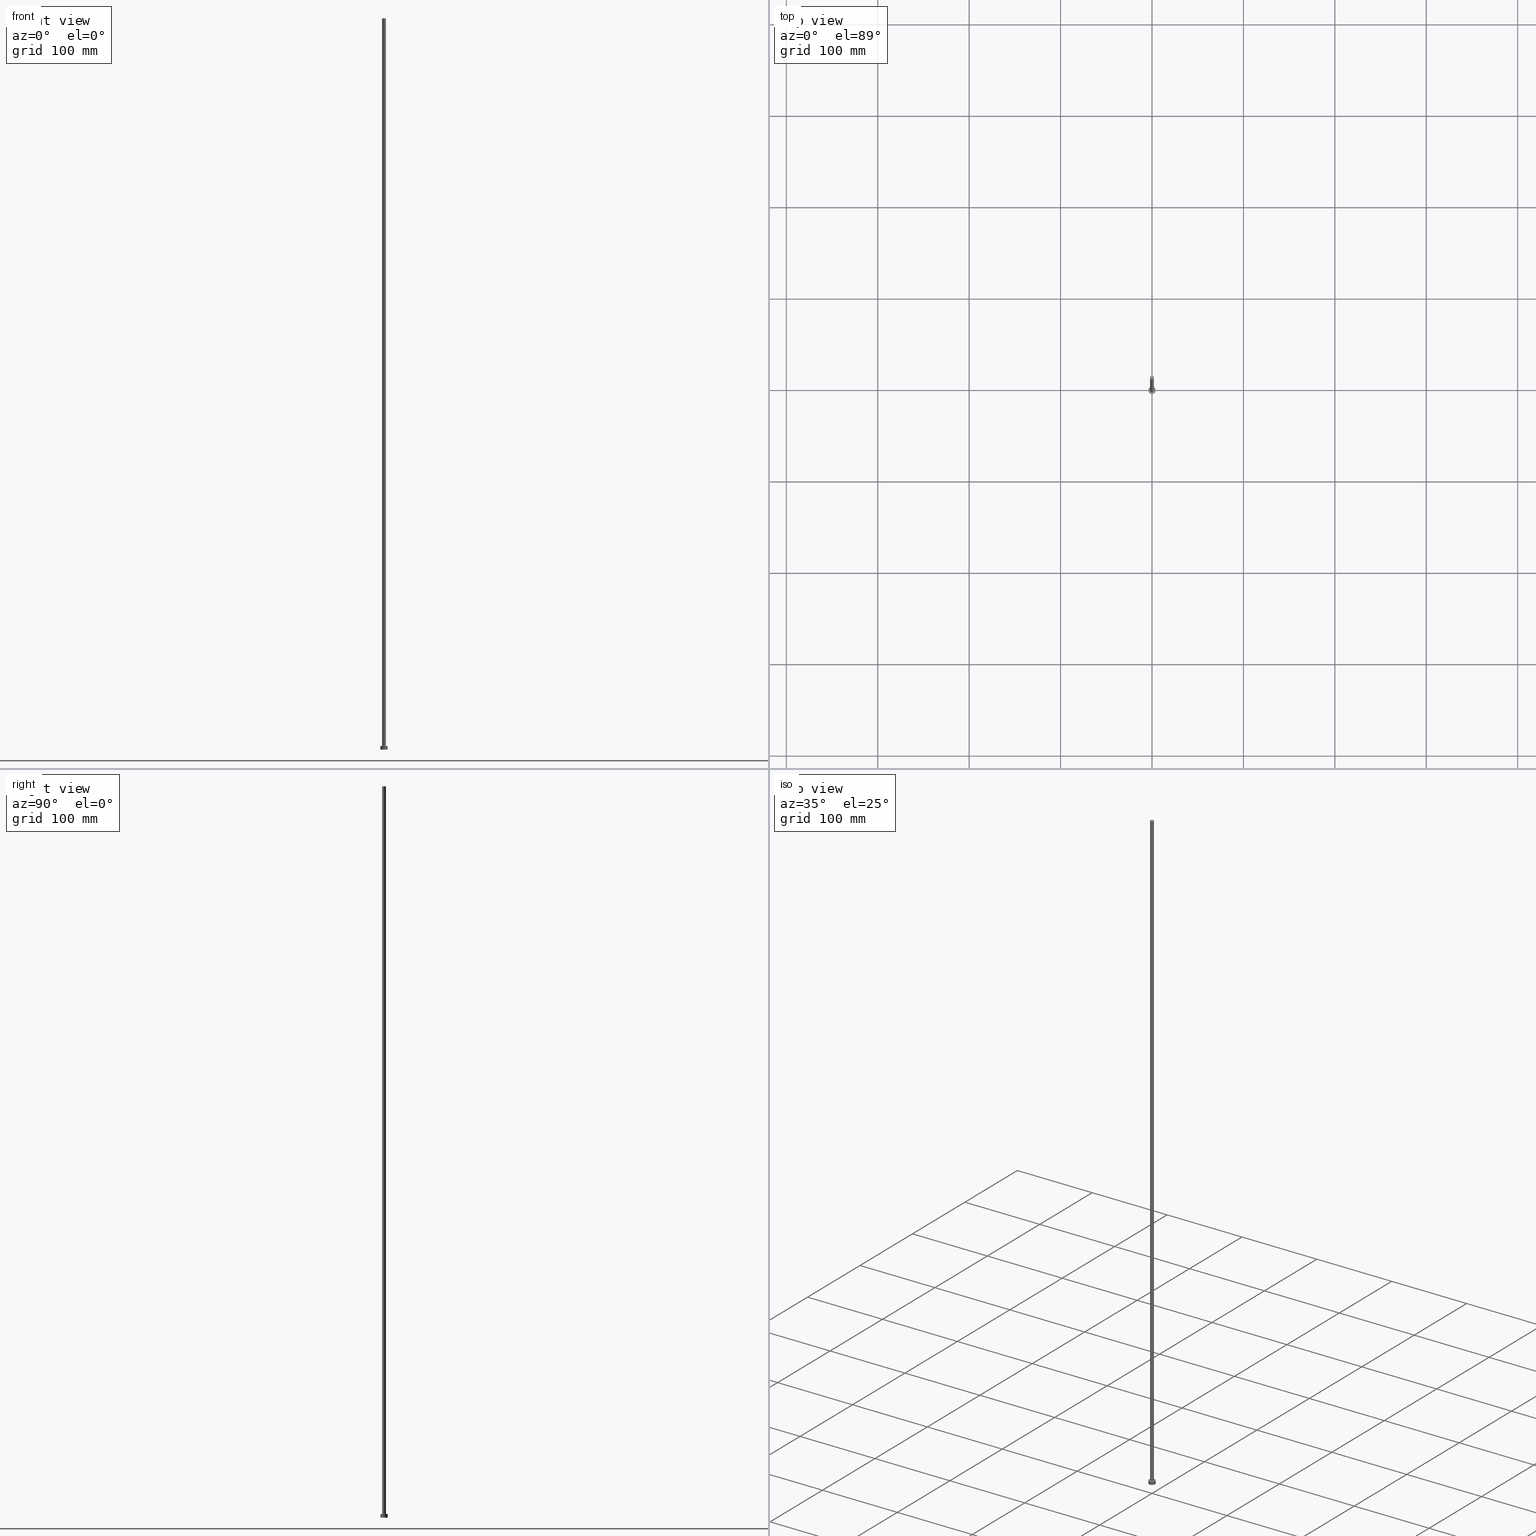
[diagram: canonical four-view strip — front | top / right | iso, engineering-drawing reading convention]
A machine part, canonical four-view strip (front | top / right | iso — engineering-drawing reading convention). The complete STEP part file that produces these views, byte-faithful:
ISO-10303-21;
HEADER;
FILE_DESCRIPTION (( 'STEP AP203' ),
    '1' );
FILE_NAME ('a6be.STEP',
    '2023-02-13T16:21:43',
    ( '' ),
    ( '' ),
    'SwSTEP 2.0',
    'SolidWorks 2019',
    '' );
FILE_SCHEMA (( 'CONFIG_CONTROL_DESIGN' ));
ENDSEC;

DATA;
#1 = ADVANCED_FACE ( 'NONE', ( #214 ), #160, .T. ) ;
#2 = CARTESIAN_POINT ( 'NONE',  ( 0.000000000000000000, 0.000000000000000000, 0.000000000000000000 ) ) ;
#3 = CC_DESIGN_PERSON_AND_ORGANIZATION_ASSIGNMENT ( #157, #243, ( #111 ) ) ;
#4 = LINE ( 'NONE', #5, #85 ) ;
#5 = CARTESIAN_POINT ( 'NONE',  ( 4.000000000000000000, 4.898587196589412829E-16, 4.000000000000000000 ) ) ;
#6 = AXIS2_PLACEMENT_3D ( 'NONE', #178, #136, #78 ) ;
#7 = DIRECTION ( 'NONE',  ( 0.000000000000000000, 0.000000000000000000, 1.000000000000000000 ) ) ;
#8 = CARTESIAN_POINT ( 'NONE',  ( 2.100000000000000089, 2.571758278209441957E-16, 800.0000000000000000 ) ) ;
#9 = CIRCLE ( 'NONE', #225, 4.000000000000000000 ) ;
#10 = APPROVAL_STATUS ( 'not_yet_approved' ) ;
#11 = AXIS2_PLACEMENT_3D ( 'NONE', #87, #184, #167 ) ;
#12 = COORDINATED_UNIVERSAL_TIME_OFFSET ( 1, 0, .AHEAD. ) ;
#13 = VERTEX_POINT ( 'NONE', #103 ) ;
#14 = FACE_BOUND ( 'NONE', #168, .T. ) ;
#15 = EDGE_LOOP ( 'NONE', ( #190, #131, #228, #195 ) ) ;
#16 = CALENDAR_DATE ( 2023, 13, 2 ) ;
#17 = APPROVAL_DATE_TIME ( #151, #240 ) ;
#18 = CARTESIAN_POINT ( 'NONE',  ( 0.000000000000000000, 0.000000000000000000, 800.0000000000000000 ) ) ;
#19 = CIRCLE ( 'NONE', #11, 2.100000000000000089 ) ;
#20 = PRODUCT_DEFINITION_SHAPE ( 'NONE', 'NONE',  #61 ) ;
#21 = EDGE_CURVE ( 'NONE', #171, #135, #235, .T. ) ;
#22 = CC_DESIGN_APPROVAL ( #66, ( #61 ) ) ;
#23 = EDGE_CURVE ( 'NONE', #138, #255, #112, .T. ) ;
#24 = CARTESIAN_POINT ( 'NONE',  ( 4.000000000000000000, 4.898587196589412829E-16, 0.000000000000000000 ) ) ;
#25 = CIRCLE ( 'NONE', #117, 2.100000000000000089 ) ;
#26 = PERSON_AND_ORGANIZATION ( #127, #200 ) ;
#27 = CC_DESIGN_DATE_AND_TIME_ASSIGNMENT ( #252, #213, ( #111 ) ) ;
#28 = VECTOR ( 'NONE', #251, 1000.000000000000000 ) ;
#29 = FACE_OUTER_BOUND ( 'NONE', #187, .T. ) ;
#30 = ORIENTED_EDGE ( 'NONE', *, *, #211, .T. ) ;
#31 = APPROVAL_PERSON_ORGANIZATION ( #145, #188, #58 ) ;
#32 = APPLICATION_PROTOCOL_DEFINITION ( 'international standard', 'config_control_design', 1994, #118 ) ;
#33 = ORIENTED_EDGE ( 'NONE', *, *, #144, .F. ) ;
#34 = AXIS2_PLACEMENT_3D ( 'NONE', #238, #182, #218 ) ;
#35 = APPROVAL_ROLE ( '' ) ;
#36 = DIRECTION ( 'NONE',  ( 0.000000000000000000, 0.000000000000000000, 1.000000000000000000 ) ) ;
#37 = CC_DESIGN_APPROVAL ( #188, ( #91 ) ) ;
#38 = CALENDAR_DATE ( 2023, 13, 2 ) ;
#39 = CARTESIAN_POINT ( 'NONE',  ( 2.100000000000000089, 2.571758278209441957E-16, 800.0000000000000000 ) ) ;
#40 = AXIS2_PLACEMENT_3D ( 'NONE', #229, #250, #233 ) ;
#41 = DIRECTION ( 'NONE',  ( 1.000000000000000000, 0.000000000000000000, 0.000000000000000000 ) ) ;
#42 = FACE_OUTER_BOUND ( 'NONE', #99, .T. ) ;
#43 = DIRECTION ( 'NONE',  ( -0.000000000000000000, -0.000000000000000000, -1.000000000000000000 ) ) ;
#44 = DIRECTION ( 'NONE',  ( 1.000000000000000000, 0.000000000000000000, 0.000000000000000000 ) ) ;
#45 = AXIS2_PLACEMENT_3D ( 'NONE', #76, #154, #139 ) ;
#46 = CARTESIAN_POINT ( 'NONE',  ( -2.100000000000000089, 0.000000000000000000, 800.0000000000000000 ) ) ;
#47 = EDGE_CURVE ( 'NONE', #13, #171, #4, .T. ) ;
#48 = VERTEX_POINT ( 'NONE', #124 ) ;
#49 = CALENDAR_DATE ( 2023, 13, 2 ) ;
#50 = CC_DESIGN_SECURITY_CLASSIFICATION ( #111, ( #91 ) ) ;
#51 = COORDINATED_UNIVERSAL_TIME_OFFSET ( 1, 0, .AHEAD. ) ;
#52 =( LENGTH_UNIT ( ) NAMED_UNIT ( * ) SI_UNIT ( .MILLI., .METRE. ) );
#53 = ORIENTED_EDGE ( 'NONE', *, *, #140, .T. ) ;
#54 =( NAMED_UNIT ( * ) PLANE_ANGLE_UNIT ( ) SI_UNIT ( $, .RADIAN. ) );
#55 = EDGE_LOOP ( 'NONE', ( #88, #53 ) ) ;
#56 = AXIS2_PLACEMENT_3D ( 'NONE', #83, #7, #44 ) ;
#57 = EDGE_CURVE ( 'NONE', #177, #48, #150, .T. ) ;
#58 = APPROVAL_ROLE ( '' ) ;
#59 = AXIS2_PLACEMENT_3D ( 'NONE', #205, #110, #65 ) ;
#60 = APPROVAL_STATUS ( 'not_yet_approved' ) ;
#61 = PRODUCT_DEFINITION ( 'NEZN�M�', '', #91, #115 ) ;
#62 = COORDINATED_UNIVERSAL_TIME_OFFSET ( 1, 0, .AHEAD. ) ;
#63 = CARTESIAN_POINT ( 'NONE',  ( 0.000000000000000000, 0.000000000000000000, 0.000000000000000000 ) ) ;
#64 = DIRECTION ( 'NONE',  ( 0.000000000000000000, 0.000000000000000000, 1.000000000000000000 ) ) ;
#65 = DIRECTION ( 'NONE',  ( -1.000000000000000000, 0.000000000000000000, 0.000000000000000000 ) ) ;
#66 = APPROVAL ( #60, 'NEUR�EN�' ) ;
#67 = DIRECTION ( 'NONE',  ( -0.000000000000000000, -0.000000000000000000, -1.000000000000000000 ) ) ;
#68 = EDGE_CURVE ( 'NONE', #255, #48, #19, .T. ) ;
#69 = CC_DESIGN_APPROVAL ( #240, ( #111 ) ) ;
#70 = ORIENTED_EDGE ( 'NONE', *, *, #47, .F. ) ;
#71 = CARTESIAN_POINT ( 'NONE',  ( 0.000000000000000000, 0.000000000000000000, 4.000000000000000000 ) ) ;
#72 = PERSON_AND_ORGANIZATION ( #127, #200 ) ;
#73 = CARTESIAN_POINT ( 'NONE',  ( 2.100000000000000089, 2.571758278209441957E-16, 4.000000000000000000 ) ) ;
#74 = ORIENTED_EDGE ( 'NONE', *, *, #253, .F. ) ;
#75 = CC_DESIGN_PERSON_AND_ORGANIZATION_ASSIGNMENT ( #254, #231, ( #61 ) ) ;
#76 = CARTESIAN_POINT ( 'NONE',  ( 0.000000000000000000, 0.000000000000000000, 800.0000000000000000 ) ) ;
#77 = ORIENTED_EDGE ( 'NONE', *, *, #144, .T. ) ;
#78 = DIRECTION ( 'NONE',  ( 1.000000000000000000, 0.000000000000000000, -0.000000000000000000 ) ) ;
#79 = ORIENTED_EDGE ( 'NONE', *, *, #21, .F. ) ;
#80 = DIRECTION ( 'NONE',  ( 1.000000000000000000, 0.000000000000000000, 0.000000000000000000 ) ) ;
#81 = APPROVAL_DATE_TIME ( #241, #66 ) ;
#82 = DIRECTION ( 'NONE',  ( 0.000000000000000000, 0.000000000000000000, 1.000000000000000000 ) ) ;
#83 = CARTESIAN_POINT ( 'NONE',  ( 0.000000000000000000, 0.000000000000000000, 4.000000000000000000 ) ) ;
#84 = COORDINATED_UNIVERSAL_TIME_OFFSET ( 1, 0, .AHEAD. ) ;
#85 = VECTOR ( 'NONE', #67, 1000.000000000000000 ) ;
#86 = LOCAL_TIME ( 17, 21, 43.00000000000000000, #133 ) ;
#87 = CARTESIAN_POINT ( 'NONE',  ( 0.000000000000000000, 0.000000000000000000, 4.000000000000000000 ) ) ;
#88 = ORIENTED_EDGE ( 'NONE', *, *, #227, .T. ) ;
#89 = CIRCLE ( 'NONE', #226, 4.000000000000000000 ) ;
#90 = CARTESIAN_POINT ( 'NONE',  ( 0.000000000000000000, 0.000000000000000000, 0.000000000000000000 ) ) ;
#91 = PRODUCT_DEFINITION_FORMATION_WITH_SPECIFIED_SOURCE ( 'LIBOVOLN�', '', #246, .NOT_KNOWN. ) ;
#92 = CYLINDRICAL_SURFACE ( 'NONE', #128, 2.100000000000000089 ) ;
#93 = DIRECTION ( 'NONE',  ( 0.000000000000000000, 0.000000000000000000, 1.000000000000000000 ) ) ;
#94 = DATE_AND_TIME ( #16, #180 ) ;
#95 = CARTESIAN_POINT ( 'NONE',  ( 0.000000000000000000, 0.000000000000000000, 800.0000000000000000 ) ) ;
#96 = ORIENTED_EDGE ( 'NONE', *, *, #211, .F. ) ;
#97 = DIRECTION ( 'NONE',  ( -1.000000000000000000, 0.000000000000000000, 0.000000000000000000 ) ) ;
#98 = ADVANCED_FACE ( 'NONE', ( #242 ), #164, .T. ) ;
#99 = EDGE_LOOP ( 'NONE', ( #244, #79 ) ) ;
#100 = PLANE ( 'NONE',  #45 ) ;
#101 = PERSON_AND_ORGANIZATION_ROLE ( 'design_supplier' ) ;
#102 = DATE_TIME_ROLE ( 'creation_date' ) ;
#103 = CARTESIAN_POINT ( 'NONE',  ( 4.000000000000000000, 4.898587196589412829E-16, 4.000000000000000000 ) ) ;
#104 = CC_DESIGN_PERSON_AND_ORGANIZATION_ASSIGNMENT ( #216, #120, ( #91 ) ) ;
#105 = CARTESIAN_POINT ( 'NONE',  ( 0.000000000000000000, 0.000000000000000000, 0.000000000000000000 ) ) ;
#106 = PERSON_AND_ORGANIZATION ( #127, #200 ) ;
#107 = ADVANCED_FACE ( 'NONE', ( #42 ), #203, .F. ) ;
#108 = MANIFOLD_SOLID_BREP ( 'P�idat vysunut�m3', #137 ) ;
#109 = CARTESIAN_POINT ( 'NONE',  ( -4.000000000000000000, 0.000000000000000000, 4.000000000000000000 ) ) ;
#110 = DIRECTION ( 'NONE',  ( -0.000000000000000000, -0.000000000000000000, -1.000000000000000000 ) ) ;
#111 = SECURITY_CLASSIFICATION ( '', '', #134 ) ;
#112 = LINE ( 'NONE', #8, #132 ) ;
#113 = APPROVAL_STATUS ( 'not_yet_approved' ) ;
#114 = CARTESIAN_POINT ( 'NONE',  ( -4.000000000000000000, 0.000000000000000000, 4.000000000000000000 ) ) ;
#115 = DESIGN_CONTEXT ( 'detailed design', #197, 'design' ) ;
#116 = CIRCLE ( 'NONE', #208, 2.100000000000000089 ) ;
#117 = AXIS2_PLACEMENT_3D ( 'NONE', #212, #93, #172 ) ;
#118 = APPLICATION_CONTEXT ( 'configuration controlled 3d designs of mechanical parts and assemblies' ) ;
#119 = ORIENTED_EDGE ( 'NONE', *, *, #227, .F. ) ;
#120 = PERSON_AND_ORGANIZATION_ROLE ( 'creator' ) ;
#121 = AXIS2_PLACEMENT_3D ( 'NONE', #71, #43, #223 ) ;
#122 = DIRECTION ( 'NONE',  ( 1.000000000000000000, 0.000000000000000000, 0.000000000000000000 ) ) ;
#123 = LOCAL_TIME ( 17, 21, 43.00000000000000000, #62 ) ;
#124 = CARTESIAN_POINT ( 'NONE',  ( -2.100000000000000089, 0.000000000000000000, 4.000000000000000000 ) ) ;
#125 = AXIS2_PLACEMENT_3D ( 'NONE', #63, #36, #122 ) ;
#126 = DIRECTION ( 'NONE',  ( -0.000000000000000000, -0.000000000000000000, -1.000000000000000000 ) ) ;
#127 = PERSON ( 'NEUR�EN�', 'NEUR�EN�', 'NEUR�EN�', ('NEUR�EN�'), ('NEUR�EN�'), ('NEUR�EN�') ) ;
#128 = AXIS2_PLACEMENT_3D ( 'NONE', #95, #174, #97 ) ;
#129 = CC_DESIGN_PERSON_AND_ORGANIZATION_ASSIGNMENT ( #26, #101, ( #91 ) ) ;
#130 = FACE_OUTER_BOUND ( 'NONE', #15, .T. ) ;
#131 = ORIENTED_EDGE ( 'NONE', *, *, #23, .T. ) ;
#132 = VECTOR ( 'NONE', #126, 1000.000000000000000 ) ;
#133 = COORDINATED_UNIVERSAL_TIME_OFFSET ( 1, 0, .AHEAD. ) ;
#134 = SECURITY_CLASSIFICATION_LEVEL ( 'unclassified' ) ;
#135 = VERTEX_POINT ( 'NONE', #162 ) ;
#136 = DIRECTION ( 'NONE',  ( 0.000000000000000000, 0.000000000000000000, 1.000000000000000000 ) ) ;
#137 = CLOSED_SHELL ( 'NONE', ( #185, #1, #181, #202, #107, #98, #217 ) ) ;
#138 = VERTEX_POINT ( 'NONE', #39 ) ;
#139 = DIRECTION ( 'NONE',  ( 1.000000000000000000, 0.000000000000000000, -0.000000000000000000 ) ) ;
#140 = EDGE_CURVE ( 'NONE', #138, #177, #116, .T. ) ;
#141 = ORIENTED_EDGE ( 'NONE', *, *, #23, .F. ) ;
#142 = CALENDAR_DATE ( 2023, 13, 2 ) ;
#143 = VECTOR ( 'NONE', #204, 1000.000000000000000 ) ;
#144 = EDGE_CURVE ( 'NONE', #192, #135, #201, .T. ) ;
#145 = PERSON_AND_ORGANIZATION ( #127, #200 ) ;
#146 = MECHANICAL_CONTEXT ( 'NONE', #118, 'mechanical' ) ;
#147 = EDGE_CURVE ( 'NONE', #48, #255, #169, .T. ) ;
#148 = FACE_OUTER_BOUND ( 'NONE', #249, .T. ) ;
#149 = CARTESIAN_POINT ( 'NONE',  ( -2.100000000000000089, 0.000000000000000000, 800.0000000000000000 ) ) ;
#150 = LINE ( 'NONE', #149, #143 ) ;
#151 = DATE_AND_TIME ( #38, #175 ) ;
#152 = APPROVAL_PERSON_ORGANIZATION ( #72, #240, #35 ) ;
#153 =( GEOMETRIC_REPRESENTATION_CONTEXT ( 3 ) GLOBAL_UNCERTAINTY_ASSIGNED_CONTEXT ( ( #186 ) ) GLOBAL_UNIT_ASSIGNED_CONTEXT ( ( #52, #54, #189 ) ) REPRESENTATION_CONTEXT ( 'NONE', 'WORKASPACE' ) );
#154 = DIRECTION ( 'NONE',  ( 0.000000000000000000, 0.000000000000000000, 1.000000000000000000 ) ) ;
#155 = DIRECTION ( 'NONE',  ( 0.000000000000000000, 0.000000000000000000, 1.000000000000000000 ) ) ;
#156 = ORIENTED_EDGE ( 'NONE', *, *, #68, .F. ) ;
#157 = PERSON_AND_ORGANIZATION ( #127, #200 ) ;
#158 = ORIENTED_EDGE ( 'NONE', *, *, #57, .T. ) ;
#159 = CC_DESIGN_PERSON_AND_ORGANIZATION_ASSIGNMENT ( #106, #237, ( #246 ) ) ;
#160 = CYLINDRICAL_SURFACE ( 'NONE', #34, 4.000000000000000000 ) ;
#161 = DIRECTION ( 'NONE',  ( 1.000000000000000000, 0.000000000000000000, -0.000000000000000000 ) ) ;
#162 = CARTESIAN_POINT ( 'NONE',  ( -4.000000000000000000, 0.000000000000000000, 0.000000000000000000 ) ) ;
#163 = APPLICATION_PROTOCOL_DEFINITION ( 'international standard', 'config_control_design', 1994, #197 ) ;
#164 = CYLINDRICAL_SURFACE ( 'NONE', #59, 2.100000000000000089 ) ;
#165 = EDGE_CURVE ( 'NONE', #135, #171, #89, .T. ) ;
#166 = CALENDAR_DATE ( 2023, 13, 2 ) ;
#167 = DIRECTION ( 'NONE',  ( 1.000000000000000000, 0.000000000000000000, 0.000000000000000000 ) ) ;
#168 = EDGE_LOOP ( 'NONE', ( #210, #156 ) ) ;
#169 = CIRCLE ( 'NONE', #56, 2.100000000000000089 ) ;
#170 = CYLINDRICAL_SURFACE ( 'NONE', #121, 4.000000000000000000 ) ;
#171 = VERTEX_POINT ( 'NONE', #24 ) ;
#172 = DIRECTION ( 'NONE',  ( 1.000000000000000000, 0.000000000000000000, 0.000000000000000000 ) ) ;
#173 = AXIS2_PLACEMENT_3D ( 'NONE', #2, #221, #161 ) ;
#174 = DIRECTION ( 'NONE',  ( -0.000000000000000000, -0.000000000000000000, -1.000000000000000000 ) ) ;
#175 = LOCAL_TIME ( 17, 21, 43.00000000000000000, #84 ) ;
#176 = ORIENTED_EDGE ( 'NONE', *, *, #165, .T. ) ;
#177 = VERTEX_POINT ( 'NONE', #46 ) ;
#178 = CARTESIAN_POINT ( 'NONE',  ( 0.000000000000000000, 0.000000000000000000, 4.000000000000000000 ) ) ;
#179 = SHAPE_DEFINITION_REPRESENTATION ( #20, #230 ) ;
#180 = LOCAL_TIME ( 17, 21, 43.00000000000000000, #12 ) ;
#181 = ADVANCED_FACE ( 'NONE', ( #148 ), #170, .T. ) ;
#182 = DIRECTION ( 'NONE',  ( -0.000000000000000000, -0.000000000000000000, -1.000000000000000000 ) ) ;
#183 = AXIS2_PLACEMENT_3D ( 'NONE', #105, #82, #198 ) ;
#184 = DIRECTION ( 'NONE',  ( 0.000000000000000000, 0.000000000000000000, 1.000000000000000000 ) ) ;
#185 = ADVANCED_FACE ( 'NONE', ( #130 ), #92, .T. ) ;
#186 = UNCERTAINTY_MEASURE_WITH_UNIT (LENGTH_MEASURE( 1.000000000000000082E-05 ), #52, 'distance_accuracy_value', 'NONE');
#187 = EDGE_LOOP ( 'NONE', ( #207, #30 ) ) ;
#188 = APPROVAL ( #10, 'NEUR�EN�' ) ;
#189 =( NAMED_UNIT ( * ) SI_UNIT ( $, .STERADIAN. ) SOLID_ANGLE_UNIT ( ) );
#190 = ORIENTED_EDGE ( 'NONE', *, *, #140, .F. ) ;
#191 = PLANE ( 'NONE',  #6 ) ;
#192 = VERTEX_POINT ( 'NONE', #114 ) ;
#193 = PRODUCT_RELATED_PRODUCT_CATEGORY ( 'detail', '', ( #246 ) ) ;
#194 = DATE_AND_TIME ( #49, #220 ) ;
#195 = ORIENTED_EDGE ( 'NONE', *, *, #57, .F. ) ;
#196 = CIRCLE ( 'NONE', #40, 4.000000000000000000 ) ;
#197 = APPLICATION_CONTEXT ( 'configuration controlled 3d designs of mechanical parts and assemblies' ) ;
#198 = DIRECTION ( 'NONE',  ( 1.000000000000000000, 0.000000000000000000, 0.000000000000000000 ) ) ;
#199 = APPROVAL_ROLE ( '' ) ;
#200 = ORGANIZATION ( 'NEUR�EN�', 'NEUR�EN�', '' ) ;
#201 = LINE ( 'NONE', #109, #28 ) ;
#202 = ADVANCED_FACE ( 'NONE', ( #14, #29 ), #191, .T. ) ;
#203 = PLANE ( 'NONE',  #173 ) ;
#204 = DIRECTION ( 'NONE',  ( -0.000000000000000000, -0.000000000000000000, -1.000000000000000000 ) ) ;
#205 = CARTESIAN_POINT ( 'NONE',  ( 0.000000000000000000, 0.000000000000000000, 800.0000000000000000 ) ) ;
#206 = ORIENTED_EDGE ( 'NONE', *, *, #21, .T. ) ;
#207 = ORIENTED_EDGE ( 'NONE', *, *, #253, .T. ) ;
#208 = AXIS2_PLACEMENT_3D ( 'NONE', #18, #64, #41 ) ;
#209 = EDGE_LOOP ( 'NONE', ( #141, #119, #158, #219 ) ) ;
#210 = ORIENTED_EDGE ( 'NONE', *, *, #147, .F. ) ;
#211 = EDGE_CURVE ( 'NONE', #13, #192, #9, .T. ) ;
#212 = CARTESIAN_POINT ( 'NONE',  ( 0.000000000000000000, 0.000000000000000000, 800.0000000000000000 ) ) ;
#213 = DATE_TIME_ROLE ( 'classification_date' ) ;
#214 = FACE_OUTER_BOUND ( 'NONE', #247, .T. ) ;
#215 = APPROVAL_PERSON_ORGANIZATION ( #239, #66, #199 ) ;
#216 = PERSON_AND_ORGANIZATION ( #127, #200 ) ;
#217 = ADVANCED_FACE ( 'NONE', ( #245 ), #100, .T. ) ;
#218 = DIRECTION ( 'NONE',  ( -1.000000000000000000, 0.000000000000000000, 0.000000000000000000 ) ) ;
#219 = ORIENTED_EDGE ( 'NONE', *, *, #147, .T. ) ;
#220 = LOCAL_TIME ( 17, 21, 43.00000000000000000, #51 ) ;
#221 = DIRECTION ( 'NONE',  ( 0.000000000000000000, 0.000000000000000000, 1.000000000000000000 ) ) ;
#222 = DIRECTION ( 'NONE',  ( 1.000000000000000000, 0.000000000000000000, 0.000000000000000000 ) ) ;
#223 = DIRECTION ( 'NONE',  ( -1.000000000000000000, 0.000000000000000000, 0.000000000000000000 ) ) ;
#224 = DIRECTION ( 'NONE',  ( 0.000000000000000000, 0.000000000000000000, 1.000000000000000000 ) ) ;
#225 = AXIS2_PLACEMENT_3D ( 'NONE', #248, #155, #80 ) ;
#226 = AXIS2_PLACEMENT_3D ( 'NONE', #90, #224, #222 ) ;
#227 = EDGE_CURVE ( 'NONE', #177, #138, #25, .T. ) ;
#228 = ORIENTED_EDGE ( 'NONE', *, *, #68, .T. ) ;
#229 = CARTESIAN_POINT ( 'NONE',  ( 0.000000000000000000, 0.000000000000000000, 4.000000000000000000 ) ) ;
#230 = ADVANCED_BREP_SHAPE_REPRESENTATION ( 'a6be', ( #108, #183 ), #153 ) ;
#231 = PERSON_AND_ORGANIZATION_ROLE ( 'creator' ) ;
#232 = ORIENTED_EDGE ( 'NONE', *, *, #47, .T. ) ;
#233 = DIRECTION ( 'NONE',  ( 1.000000000000000000, 0.000000000000000000, 0.000000000000000000 ) ) ;
#234 = APPROVAL_DATE_TIME ( #194, #188 ) ;
#235 = CIRCLE ( 'NONE', #125, 4.000000000000000000 ) ;
#236 = CC_DESIGN_DATE_AND_TIME_ASSIGNMENT ( #94, #102, ( #61 ) ) ;
#237 = PERSON_AND_ORGANIZATION_ROLE ( 'design_owner' ) ;
#238 = CARTESIAN_POINT ( 'NONE',  ( 0.000000000000000000, 0.000000000000000000, 4.000000000000000000 ) ) ;
#239 = PERSON_AND_ORGANIZATION ( #127, #200 ) ;
#240 = APPROVAL ( #113, 'NEUR�EN�' ) ;
#241 = DATE_AND_TIME ( #166, #123 ) ;
#242 = FACE_OUTER_BOUND ( 'NONE', #209, .T. ) ;
#243 = PERSON_AND_ORGANIZATION_ROLE ( 'classification_officer' ) ;
#244 = ORIENTED_EDGE ( 'NONE', *, *, #165, .F. ) ;
#245 = FACE_OUTER_BOUND ( 'NONE', #55, .T. ) ;
#246 = PRODUCT ( 'a6be', 'a6be', '', ( #146 ) ) ;
#247 = EDGE_LOOP ( 'NONE', ( #96, #232, #206, #33 ) ) ;
#248 = CARTESIAN_POINT ( 'NONE',  ( 0.000000000000000000, 0.000000000000000000, 4.000000000000000000 ) ) ;
#249 = EDGE_LOOP ( 'NONE', ( #70, #74, #77, #176 ) ) ;
#250 = DIRECTION ( 'NONE',  ( 0.000000000000000000, 0.000000000000000000, 1.000000000000000000 ) ) ;
#251 = DIRECTION ( 'NONE',  ( -0.000000000000000000, -0.000000000000000000, -1.000000000000000000 ) ) ;
#252 = DATE_AND_TIME ( #142, #86 ) ;
#253 = EDGE_CURVE ( 'NONE', #192, #13, #196, .T. ) ;
#254 = PERSON_AND_ORGANIZATION ( #127, #200 ) ;
#255 = VERTEX_POINT ( 'NONE', #73 ) ;
ENDSEC;
END-ISO-10303-21;
